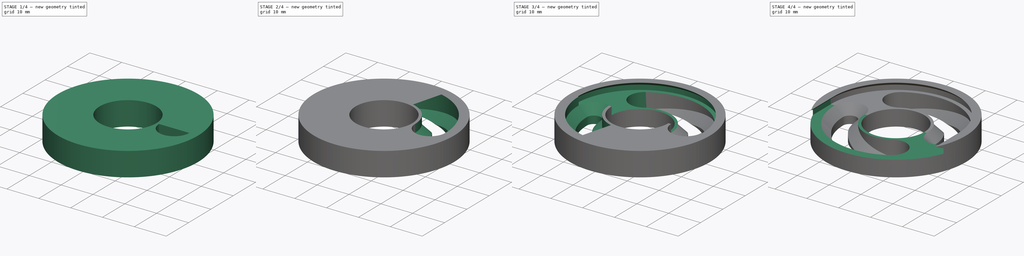
[diagram: build sequence overview — one tinted view per stage of 4, left to right]
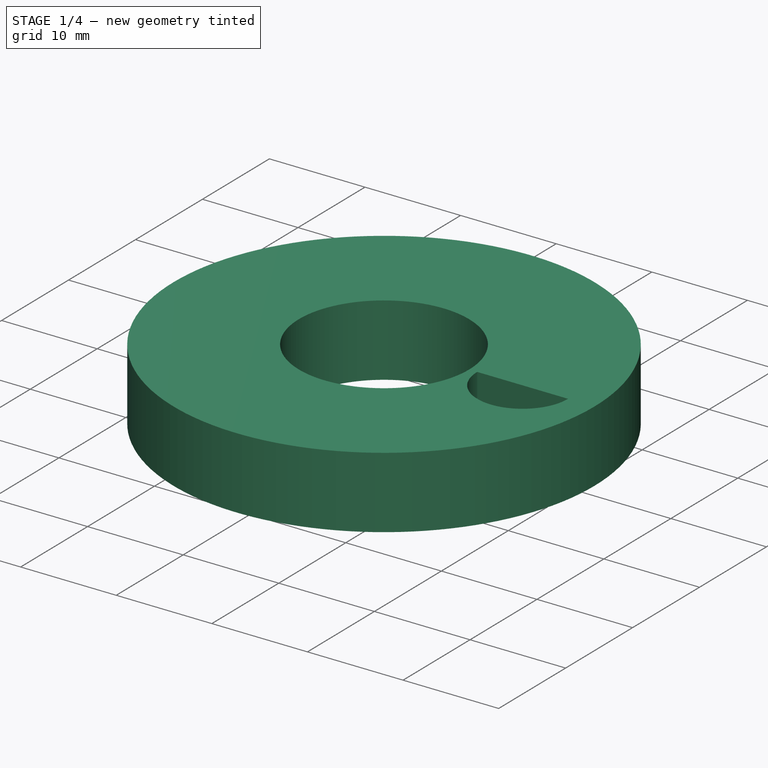
[diagram: stage 1 of 4 — iso view after this stage's code; geometry added in this stage tinted green]
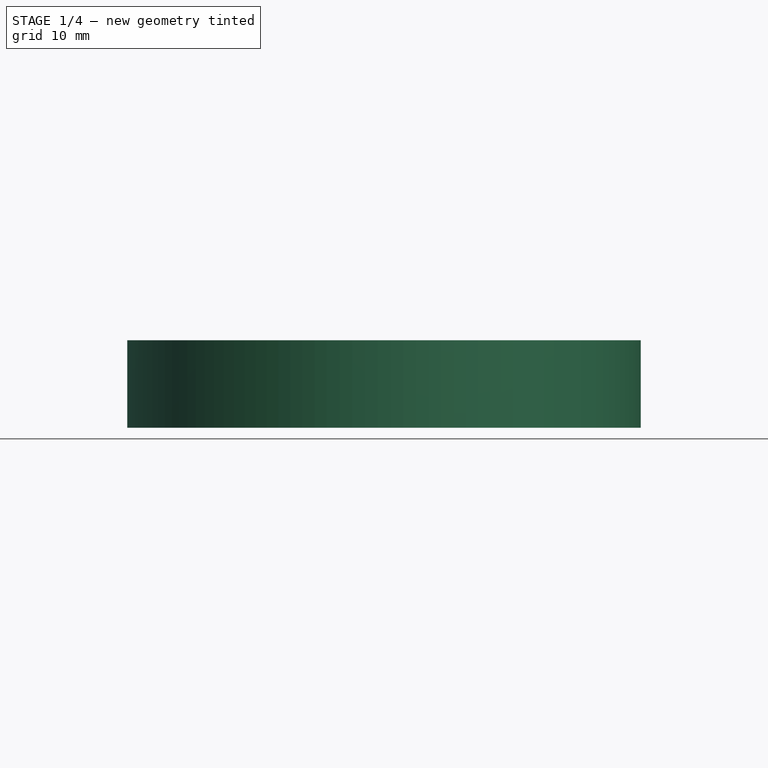
[diagram: stage 1 of 4 — front view after this stage's code; geometry added in this stage tinted green]
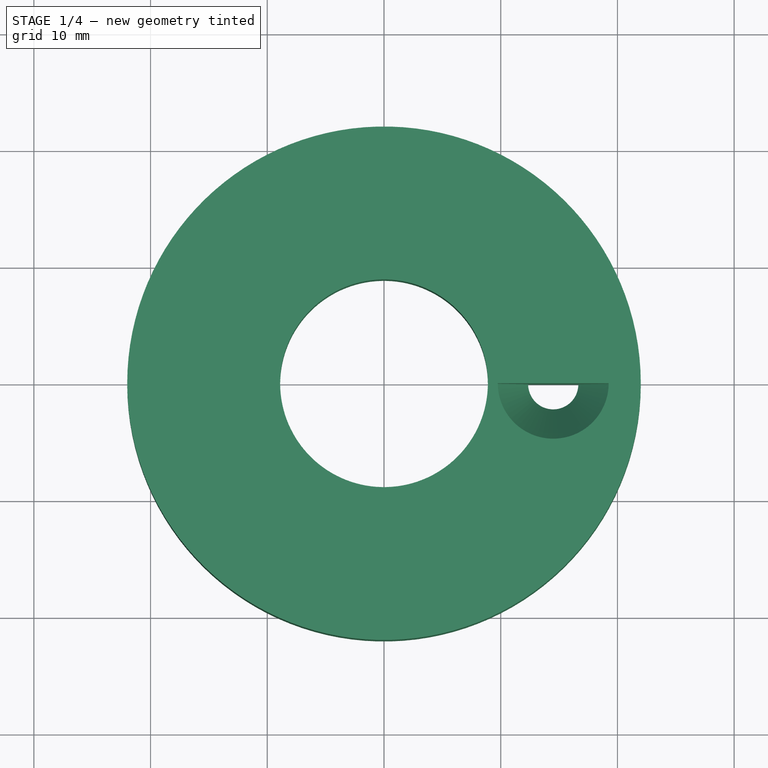
[diagram: stage 1 of 4 — top view after this stage's code; geometry added in this stage tinted green]
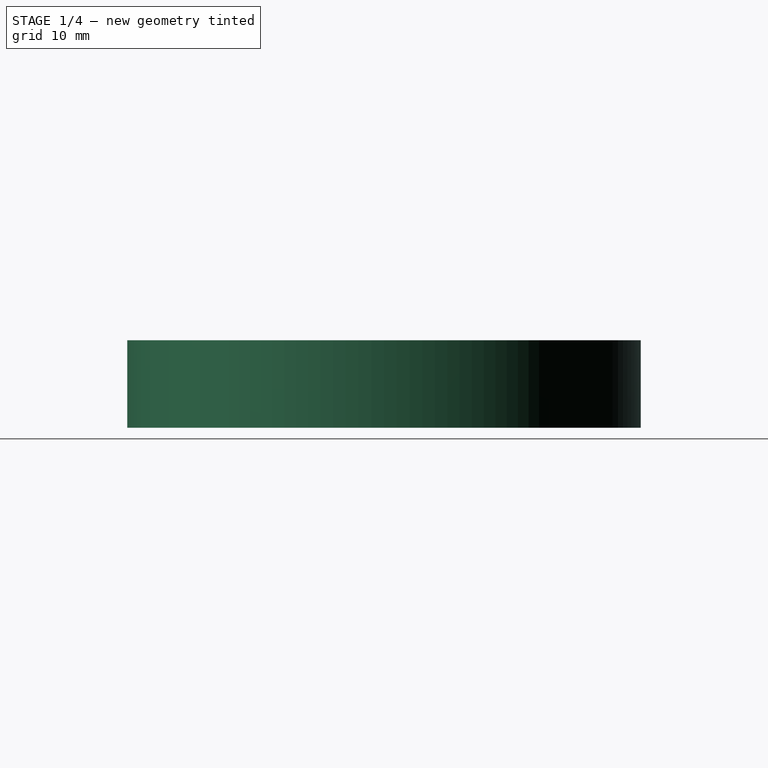
[diagram: stage 1 of 4 — right view after this stage's code; geometry added in this stage tinted green]
FCSTD DOCUMENT  (FreeCAD 0.21R33771 (Git))
Label: SpacerFirstAttempt
License: All rights reserved
LicenseURL: http://en.wikipedia.org/wiki/All_rights_reserved
objects: Sketcher::SketchObject×5, PartDesign::Groove×4, PartDesign::Pad×1, PartDesign::Line×1, PartDesign::SubtractiveHelix×1, PartDesign::PolarPattern×1, PartDesign::Pocket×1, PartDesign::Mirrored×1, PartDesign::Body×1
note: 23 computed .brp shape members not serialized (recipe doc carries the construction recipe); baked Part::Feature solids carry a one-line shape summary decoded from their .brp

FEATURE [Sketcher::SketchObject] Sketch
  FullyConstrained = true
  MapMode = 5
  Support = -> [XY_Plane]
  sketch-geometry (2):
    g0: Circle CenterX=0 CenterY=0 CenterZ=0 NormalX=0 NormalY=0 NormalZ=1 AngleXU=0 Radius=22
    g1: Circle CenterX=0 CenterY=0 CenterZ=0 NormalX=0 NormalY=0 NormalZ=1 AngleXU=0 Radius=8.9
  constraints (4):
    c: Coincident(g0,g-1)
    c: Coincident(g1,g0)
    c: Diameter(g1) = 17.8
    c: Diameter(g0) = 44
FEATURE [Sketcher::SketchObject] Sketch001
  FullyConstrained = false
  MapMode = 5
  Placement = pos=(0,0,0) rot=(1,0,0;1.5708rad)
  Support = -> [XZ_Plane]
  sketch-geometry (12):
    g0: LineSegment StartX=12.35 StartY=0 StartZ=0 EndX=12.35 EndY=2.4 EndZ=0
    g1: LineSegment StartX=12.35 StartY=2.4 StartZ=0 EndX=9.75 EndY=5 EndZ=0
    g2: LineSegment StartX=9.75 StartY=5 StartZ=0 EndX=19.25 EndY=5 EndZ=0
    g3: LineSegment StartX=19.25 StartY=5 StartZ=0 EndX=16.65 EndY=2.4 EndZ=0
    g4: LineSegment StartX=16.65 StartY=2.4 StartZ=0 EndX=16.65 EndY=0 EndZ=0
    g5: LineSegment StartX=16.65 StartY=0 StartZ=0 EndX=12.35 EndY=0 EndZ=0
    g6: LineSegment StartX=14.5 StartY=5 StartZ=0 EndX=14.5 EndY=0 EndZ=0
    g7: LineSegment StartX=0 StartY=0 StartZ=0 EndX=0 EndY=16.7412 EndZ=0
    g8: LineSegment StartX=14.5 StartY=0 StartZ=0 EndX=12.35 EndY=0 EndZ=0
    g9: LineSegment StartX=9.75 StartY=5 StartZ=0 EndX=9.75 EndY=10 EndZ=0
    g10: LineSegment StartX=9.75 StartY=10 StartZ=0 EndX=14.5 EndY=10 EndZ=0
    g11: LineSegment StartX=14.5 StartY=10 StartZ=0 EndX=14.5 EndY=5 EndZ=0
  constraints (33):
    c: PointOnObject(g0,g-1)
    c: Vertical(g0)
    c: Coincident(g1,g0)
    c: Coincident(g2,g1)
    c: Horizontal(g2)
    c: Coincident(g3,g2)
    c: Coincident(g4,g3)
    c: Vertical(g4)
    c: Coincident(g5,g4)
    c: Coincident(g5,g0)
    c: Horizontal(g5)
    c: Vertical(g6)
    c: Symmetric(g0,g4,g6)
    c: Symmetric(g1,g2,g6)
    c: Equal(g0,g4)
    c: DistanceY(g4,g2) = 5
    c: DistanceX(g2,g2) = 9.5
    c: Perpendicular(g3,g1)
    c: DistanceX(g5,g5) = 4.3
    c: DistanceX(g-1,g6) = 14.5
    c: PointOnObject(g7,g-1)
    c: PointOnObject(g7,g-2)
    c: Vertical(g7)
    c: Coincident(g8,g6)
    c: Coincident(g8,g0)
    c: Coincident(g9,g1)
    c: Vertical(g9)
    c: Coincident(g10,g9)
    c: Horizontal(g10)
    c: Coincident(g11,g10)
    c: Vertical(g11)
    c: DistanceY(g9,g9) = 5
    c: Coincident(g11,g6)
FEATURE [PartDesign::Pad] Pad
  Direction = (0,0,1)
  Length = 7.5
  Length2 = 10
  Profile = -> Sketch
  ReferenceAxis = -> Sketch [N_Axis]
  Type = 0
FEATURE [PartDesign::Line] DatumLine
  AttacherType = Attacher::AttachEngineLine
  AttachmentOffset = pos=(14.5,0,0) rot=(0,0,1;0rad)
  Length = 20
  MapMode = 29
  Placement = pos=(14.5,0,-1.6e-15) rot=(0,0,1;0rad)
  ResizeMode = 0
  Support = -> [Z_Axis]
FEATURE [PartDesign::Groove] Groove
  Angle = 180
  Axis = (1e-16,1e-16,1)
  Base = (14.5,0,-1.6e-15)
  BaseFeature = -> Pad
  Profile = -> Sketch001
  ReferenceAxis = -> DatumLine
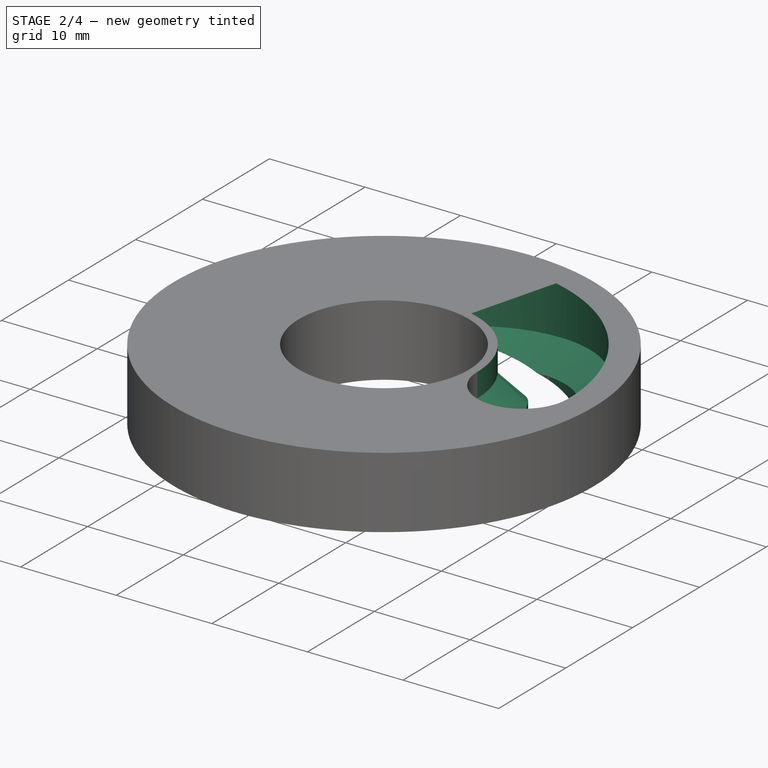
[diagram: stage 2 of 4 — iso view after this stage's code; geometry added in this stage tinted green]
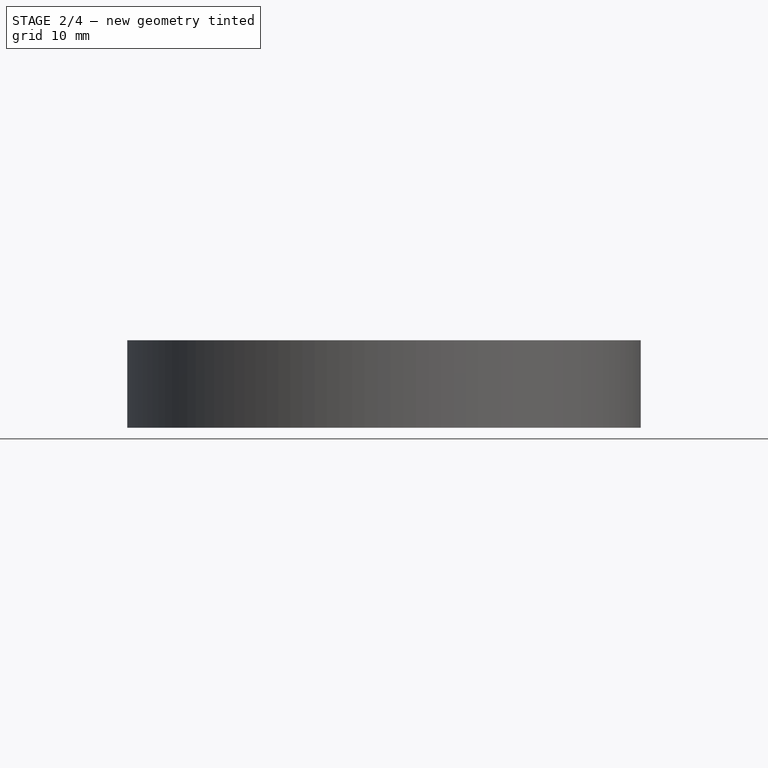
[diagram: stage 2 of 4 — front view after this stage's code; geometry added in this stage tinted green]
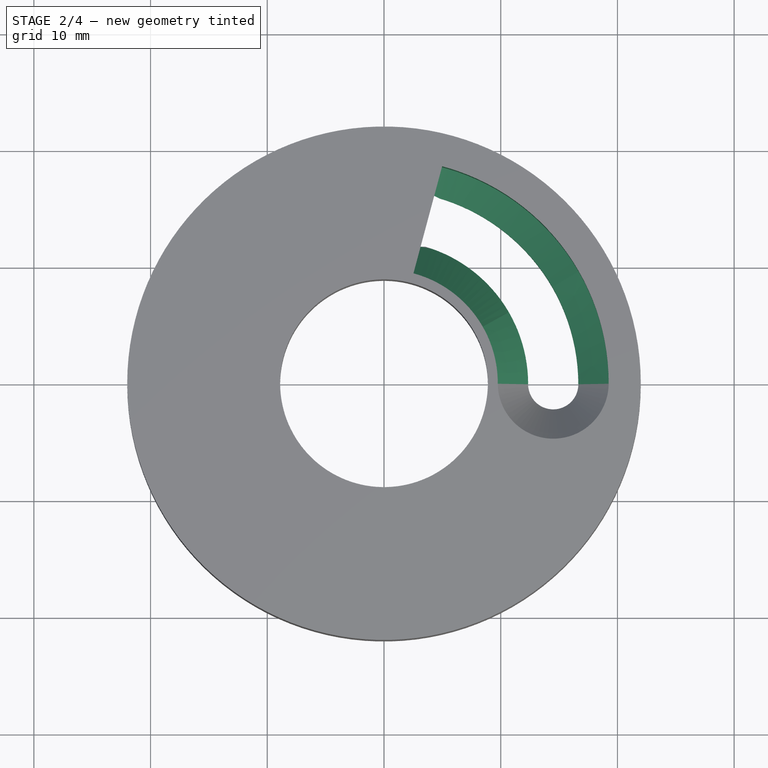
[diagram: stage 2 of 4 — top view after this stage's code; geometry added in this stage tinted green]
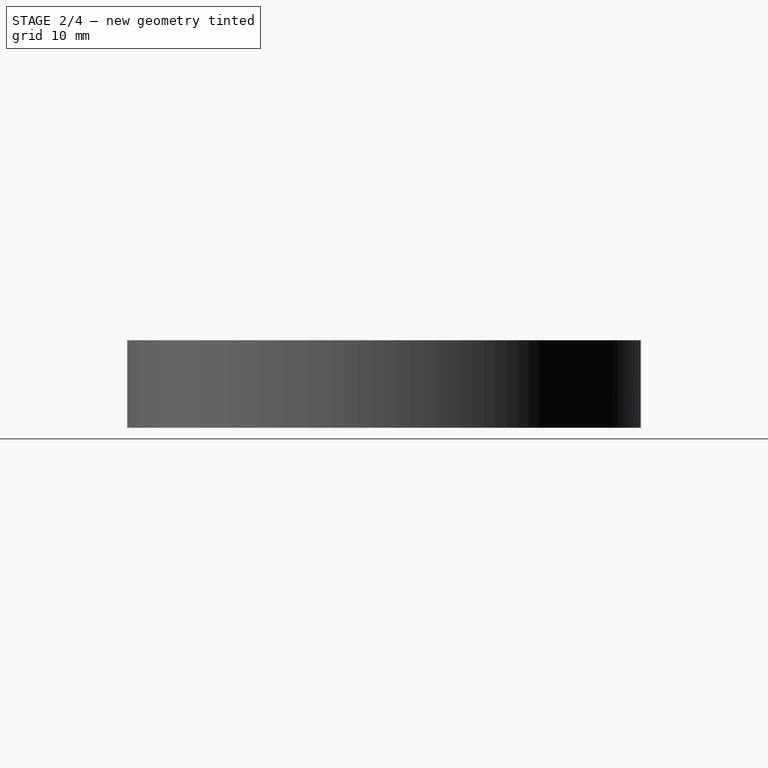
[diagram: stage 2 of 4 — right view after this stage's code; geometry added in this stage tinted green]
FEATURE [PartDesign::Groove] Groove001
  Angle = 30
  Axis = (1e-16,1e-16,1)
  Base = (0,0,0)
  BaseFeature = -> Groove
  Profile = -> Groove [Face6,Face5]
  ReferenceAxis = -> Z_Axis
FEATURE [Sketcher::SketchObject] Sketch002
  AttachmentOffset = pos=(0,0,0) rot=(0,1,0;0.523599rad)
  FullyConstrained = true
  MapMode = 5
  Placement = pos=(0,0,0) rot=(0.935113,0.250563,0.250563;1.63783rad)
  Support = -> [XZ_Plane]
  sketch-geometry (9):
    g0: LineSegment StartX=12.35 StartY=0 StartZ=0 EndX=12.35 EndY=2.4 EndZ=0
    g1: LineSegment StartX=12.35 StartY=2.4 StartZ=0 EndX=9.75 EndY=5 EndZ=0
    g2: LineSegment StartX=9.75 StartY=5 StartZ=0 EndX=9.75 EndY=10 EndZ=0
    g3: LineSegment StartX=9.75 StartY=10 StartZ=0 EndX=19.25 EndY=10 EndZ=0
    g4: LineSegment StartX=19.25 StartY=10 StartZ=0 EndX=19.25 EndY=5 EndZ=0
    g5: LineSegment StartX=19.25 StartY=5 StartZ=0 EndX=16.65 EndY=2.4 EndZ=0
    g6: LineSegment StartX=16.65 StartY=2.4 StartZ=0 EndX=16.65 EndY=0 EndZ=0
    g7: LineSegment StartX=16.65 StartY=0 StartZ=0 EndX=12.35 EndY=0 EndZ=0
    g8: GeomPoint X=14.5 Y=0 Z=0
  constraints (25):
    c: Vertical(g0)
    c: Coincident(g1,g0)
    c: Coincident(g2,g1)
    c: Vertical(g2)
    c: Coincident(g3,g2)
    c: Horizontal(g3)
    c: Coincident(g4,g3)
    c: Vertical(g4)
    c: Coincident(g5,g4)
    c: Coincident(g6,g5)
    c: Vertical(g6)
    c: Coincident(g7,g6)
    c: Coincident(g7,g0)
    c: DistanceX(g3,g3) = 9.5
    c: PointOnObject(g0,g-1)
    c: Horizontal(g7)
    c: Angle(g1,g2) = 2.35619
    c: Angle(g4,g5) = 2.35619
    c: Horizontal(g1,g4)
    c: DistanceX(g7,g7) = 4.3
    c: DistanceY(g0,g1) = 5
    c: DistanceY(g2,g2) = 5
    c: Symmetric(g0,g6,g8)
    c: DistanceX(g-1,g8) = 14.5
    c: Equal(g1,g5)
FEATURE [PartDesign::SubtractiveHelix] SubtractiveHelix
  Angle = 0
  Axis = (0,-1e-16,1)
  Base = (0,0,0)
  BaseFeature = -> Groove001
  Growth = 0
  HasBeenEdited = true
  Height = 5
  LeftHanded = true
  Mode = 2
  Outside = false
  Pitch = 20
  Profile = -> Sketch002
  ReferenceAxis = -> Sketch002 [V_Axis]
  Reversed = true
  Turns = 0.25
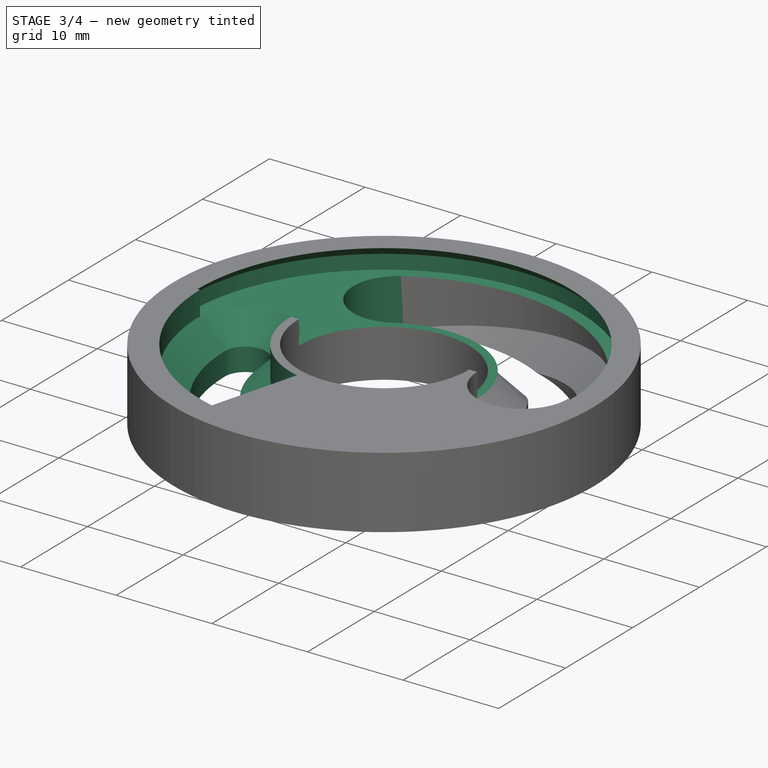
[diagram: stage 3 of 4 — iso view after this stage's code; geometry added in this stage tinted green]
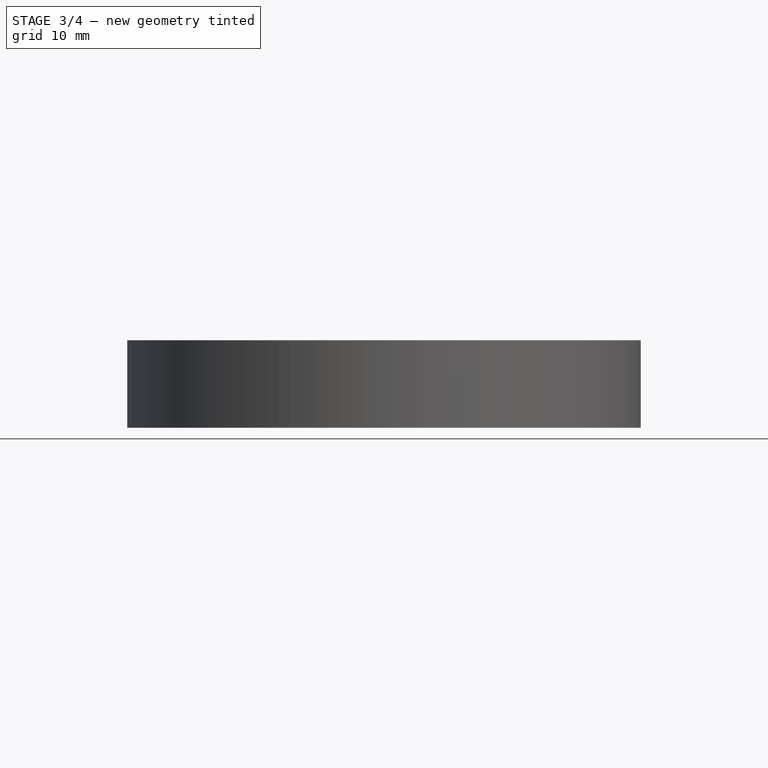
[diagram: stage 3 of 4 — front view after this stage's code; geometry added in this stage tinted green]
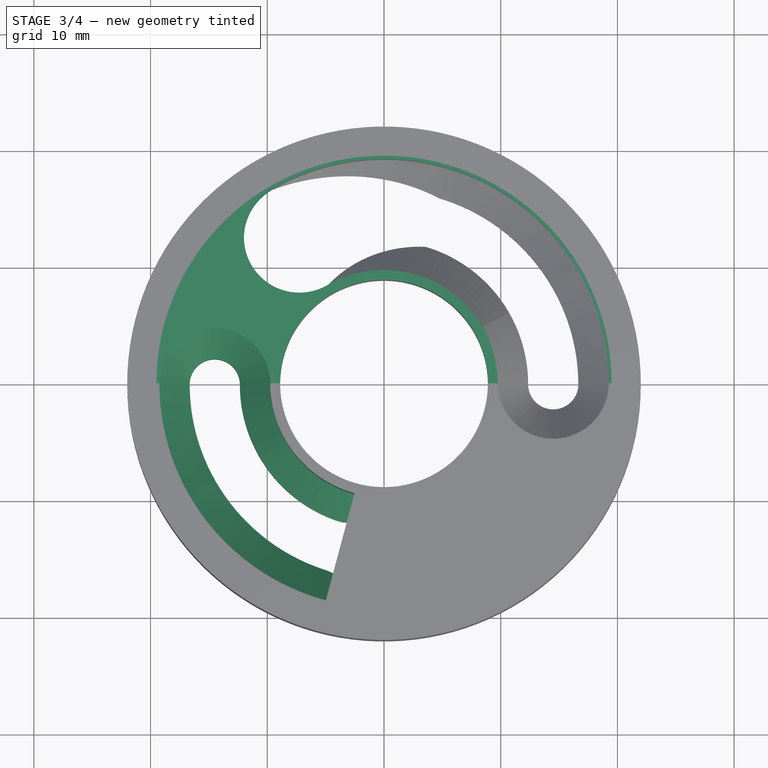
[diagram: stage 3 of 4 — top view after this stage's code; geometry added in this stage tinted green]
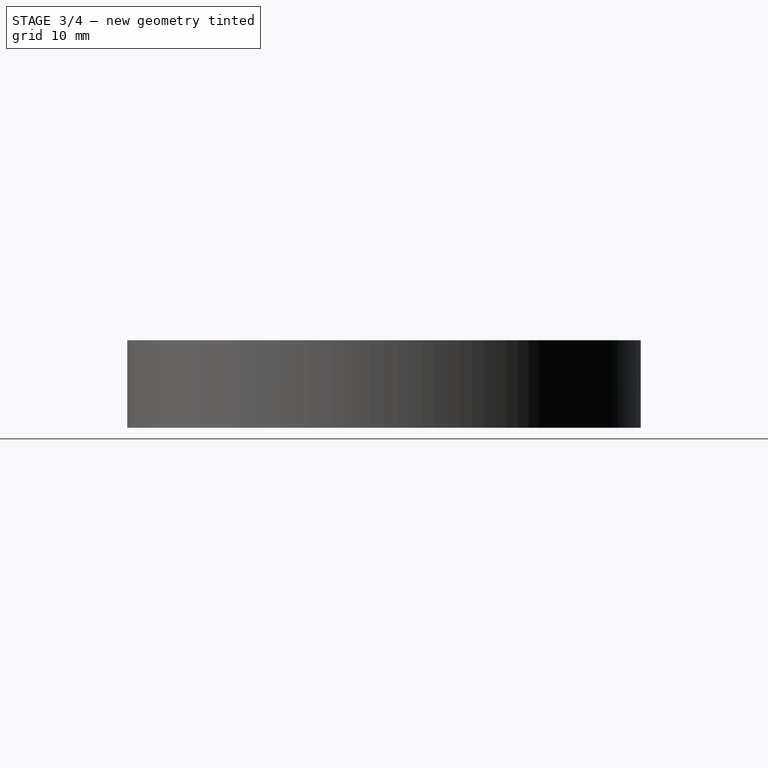
[diagram: stage 3 of 4 — right view after this stage's code; geometry added in this stage tinted green]
FEATURE [Sketcher::SketchObject] Sketch003
  AttachmentOffset = pos=(0,0,0) rot=(0,1,0;0.523599rad)
  FullyConstrained = false
  MapMode = 5
  Placement = pos=(0,0,0) rot=(0.377964,0.654654,0.654654;2.41886rad)
  Support = -> [YZ_Plane]
  sketch-geometry (5):
    g0: LineSegment StartX=9.75 StartY=0 StartZ=0 EndX=14.5 EndY=0 EndZ=0
    g1: LineSegment StartX=14.5 StartY=0 StartZ=0 EndX=14.5 EndY=5 EndZ=0
    g2: LineSegment StartX=14.5 StartY=5 StartZ=0 EndX=9.75 EndY=5 EndZ=0
    g3: LineSegment StartX=9.75 StartY=5 StartZ=0 EndX=9.75 EndY=0 EndZ=0
    g4: GeomPoint X=16.6511 Y=4.89936 Z=0
  constraints (12):
    c: Coincident(g0,g1)
    c: Coincident(g1,g2)
    c: Coincident(g2,g3)
    c: Coincident(g3,g0)
    c: Horizontal(g0)
    c: Horizontal(g2)
    c: Vertical(g1)
    c: Vertical(g3)
    c: PointOnObject(g0,g-1)
    c: DistanceY(g3,g3) = 5
    c: DistanceX(g0,g0) = 4.75
    c: DistanceX(g-1,g0) = 14.5
FEATURE [PartDesign::Groove] Groove002
  Angle = 180
  Axis = (-3e-16,3e-16,1)
  Base = (-7.25,12.5574,-5.6e-15)
  BaseFeature = -> SubtractiveHelix
  Profile = -> Sketch003
  ReferenceAxis = -> Sketch003 [Edge2]
  Reversed = true
FEATURE [PartDesign::PolarPattern] PolarPattern
  Angle = 360
  Axis = -> Z_Axis
  BaseFeature = -> Groove002
  Occurrences = 2
  Originals = -> [Groove,Groove001,SubtractiveHelix,Groove002]
FEATURE [Sketcher::SketchObject] Sketch004
  FullyConstrained = true
  MapMode = 5
  Placement = pos=(0,0,0) rot=(1,0,0;1.5708rad)
  Support = -> [XZ_Plane]
  sketch-geometry (5):
    g0: LineSegment StartX=0 StartY=5 StartZ=0 EndX=0 EndY=10 EndZ=0
    g1: LineSegment StartX=0 StartY=10 StartZ=0 EndX=17 EndY=10 EndZ=0
    g2: LineSegment StartX=17 StartY=10 StartZ=0 EndX=20.5 EndY=6.5 EndZ=0
    g3: LineSegment StartX=20.5 StartY=6.5 StartZ=0 EndX=20.5 EndY=5 EndZ=0
    g4: LineSegment StartX=20.5 StartY=5 StartZ=0 EndX=0 EndY=5 EndZ=0
  constraints (15):
    c: PointOnObject(g0,g-2)
    c: Vertical(g0)
    c: Coincident(g1,g0)
    c: Horizontal(g1)
    c: Coincident(g2,g1)
    c: Coincident(g3,g2)
    c: Vertical(g3)
    c: Coincident(g4,g3)
    c: Coincident(g4,g0)
    c: Horizontal(g4)
    c: DistanceX(g4,g4) = 20.5
    c: Angle(g2,g3) = 2.35619
    c: DistanceY(g0,g0) = 5
    c: DistanceY(g3,g3) = 1.5
    c: DistanceY(g-1,g0) = 5
FEATURE [PartDesign::Groove] Groove003
  Angle = 180
  Axis = (0,-2e-16,1)
  Base = (0,0,0)
  BaseFeature = -> PolarPattern
  Profile = -> Sketch004
  ReferenceAxis = -> Sketch004 [V_Axis]
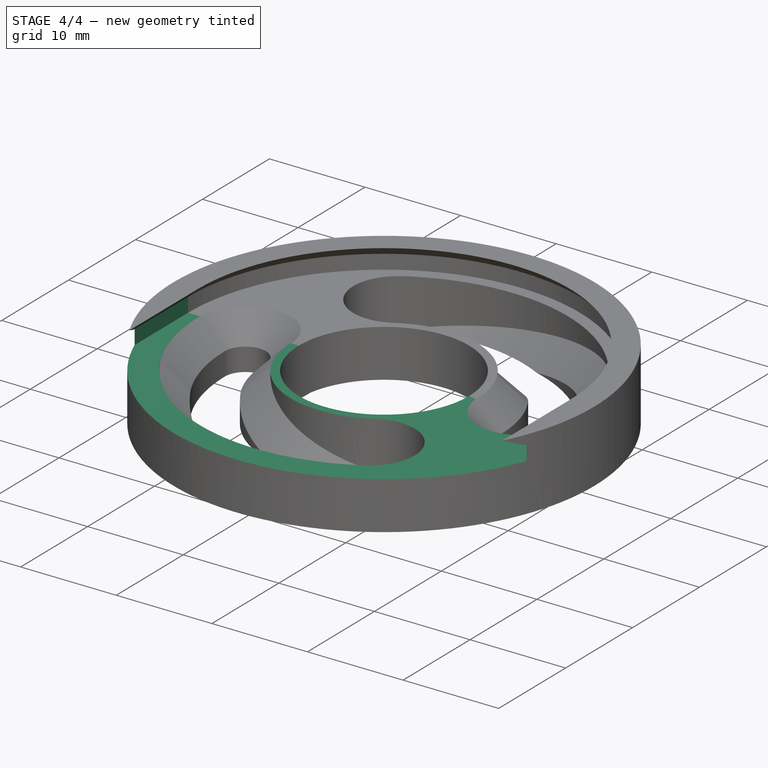
[diagram: stage 4 of 4 — iso view after this stage's code; geometry added in this stage tinted green]
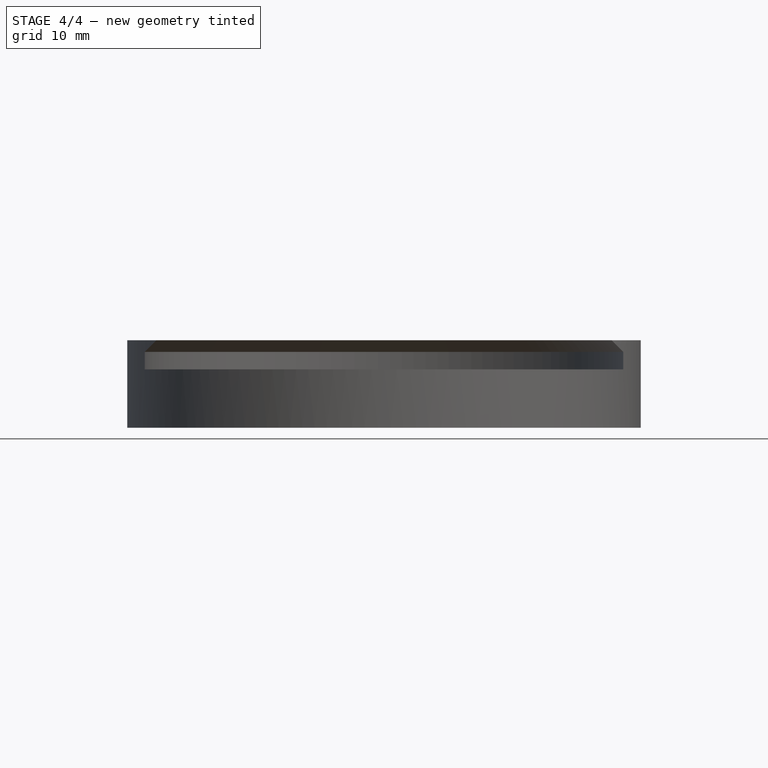
[diagram: stage 4 of 4 — front view after this stage's code; geometry added in this stage tinted green]
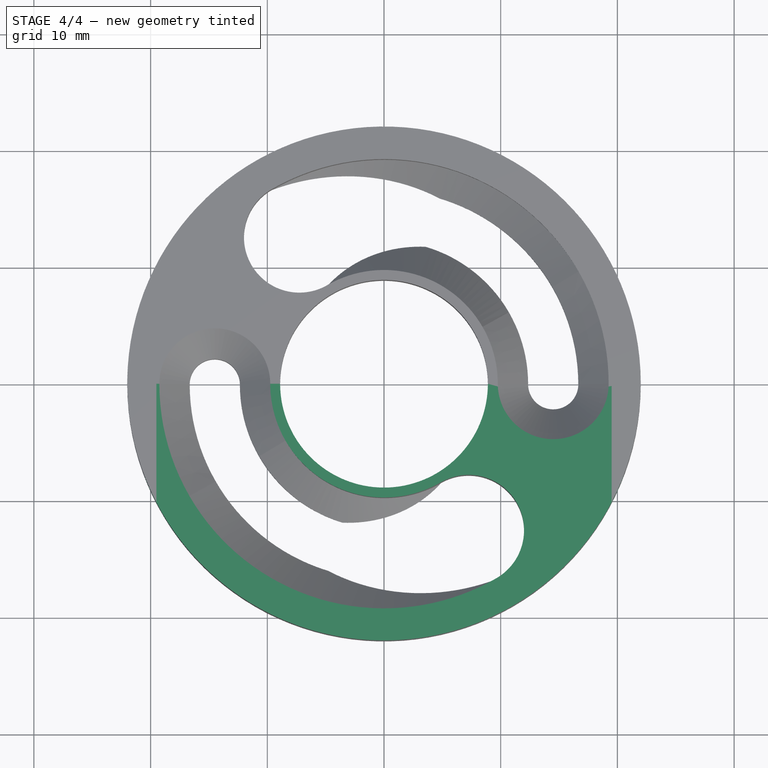
[diagram: stage 4 of 4 — top view after this stage's code; geometry added in this stage tinted green]
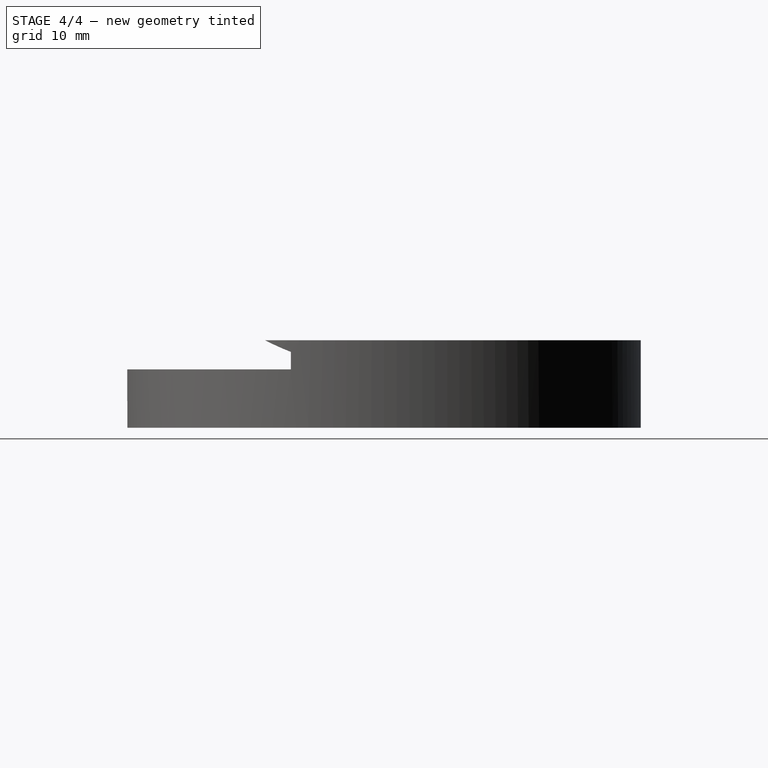
[diagram: stage 4 of 4 — right view after this stage's code; geometry added in this stage tinted green]
FEATURE [PartDesign::Pocket] Pocket
  BaseFeature = -> Groove003
  Direction = (0,1,2e-16)
  Length = 22
  Length2 = 5
  Profile = -> Sketch004
  ReferenceAxis = -> Sketch004 [N_Axis]
  Reversed = true
  Type = 0
FEATURE [PartDesign::Mirrored] Mirrored
  BaseFeature = -> Pocket
  MirrorPlane = -> Sketch004 [V_Axis]
  Originals = -> [Pocket]
FEATURE [PartDesign::Body] Body
  Group = -> [Sketch,Sketch001,Pad,DatumLine,Groove,Groove001,Sketch002,SubtractiveHelix,Sketch003,Groove002,PolarPattern,Sketch004,Groove003,Pocket,Mirrored]
  Origin = -> Origin
  Tip = -> Mirrored
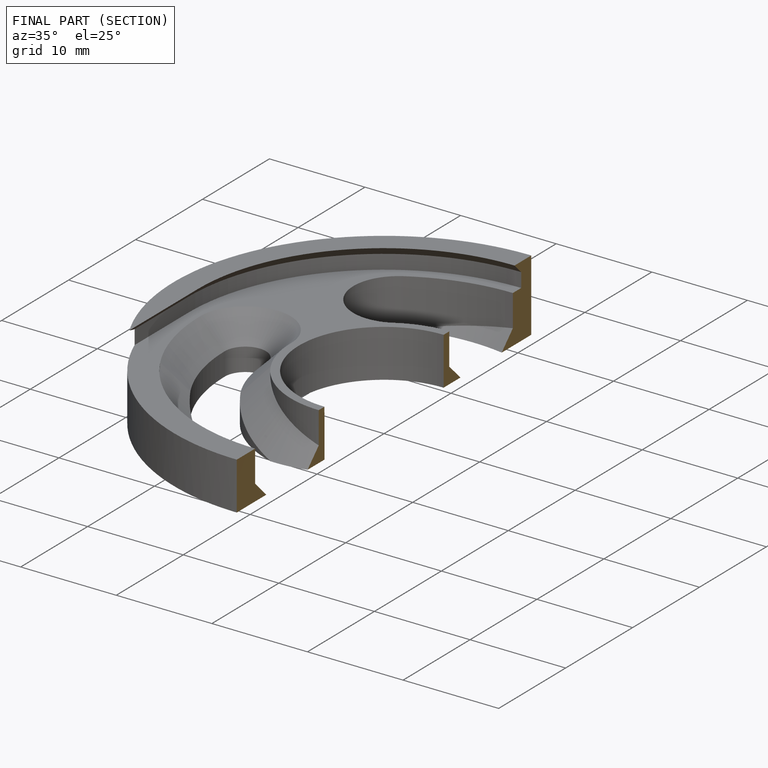
[diagram: finished part — half-section view (interior)]
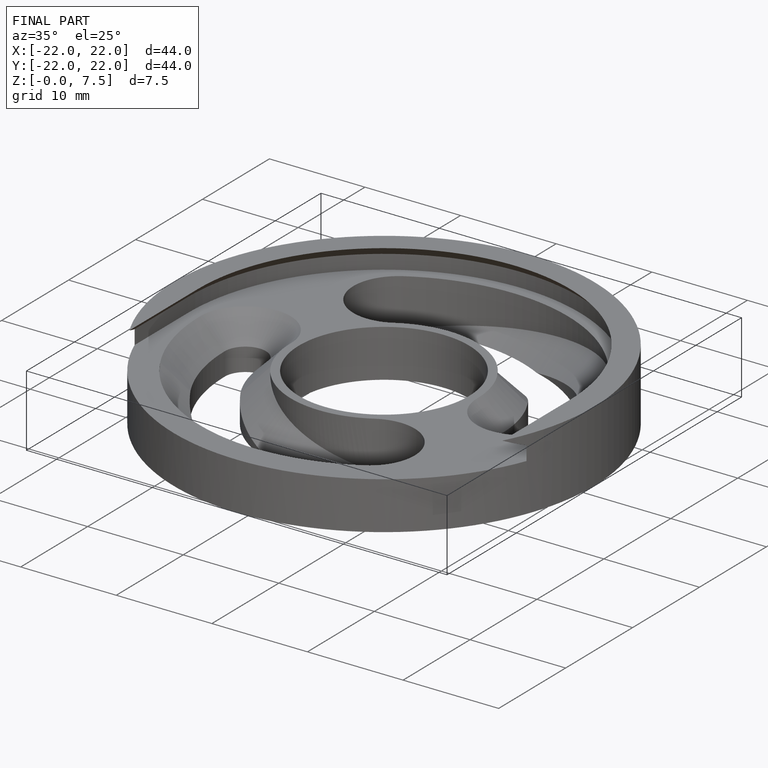
[diagram: finished part — iso view with bounding-box wireframe]
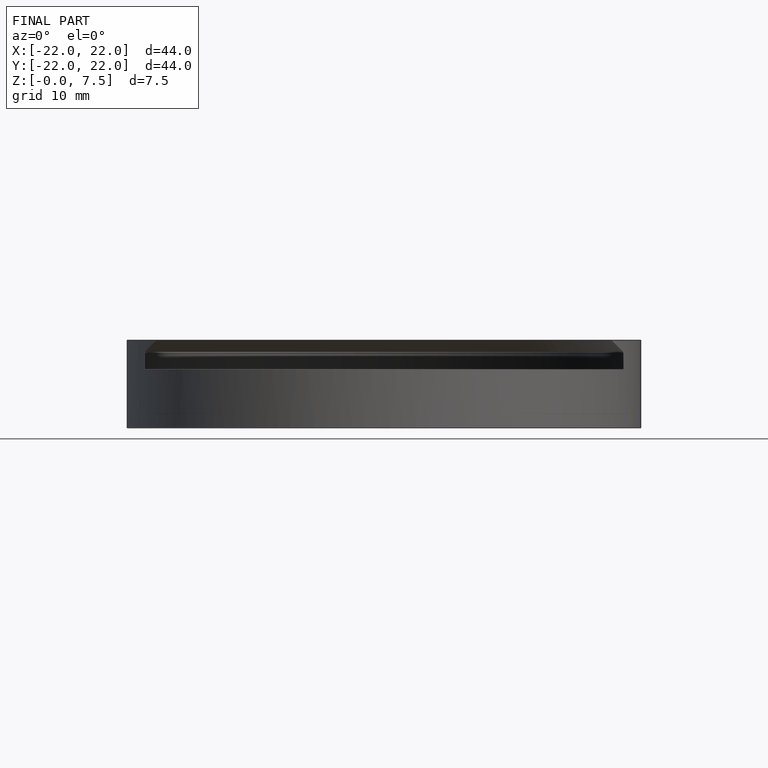
[diagram: finished part — front view with bounding-box wireframe]
